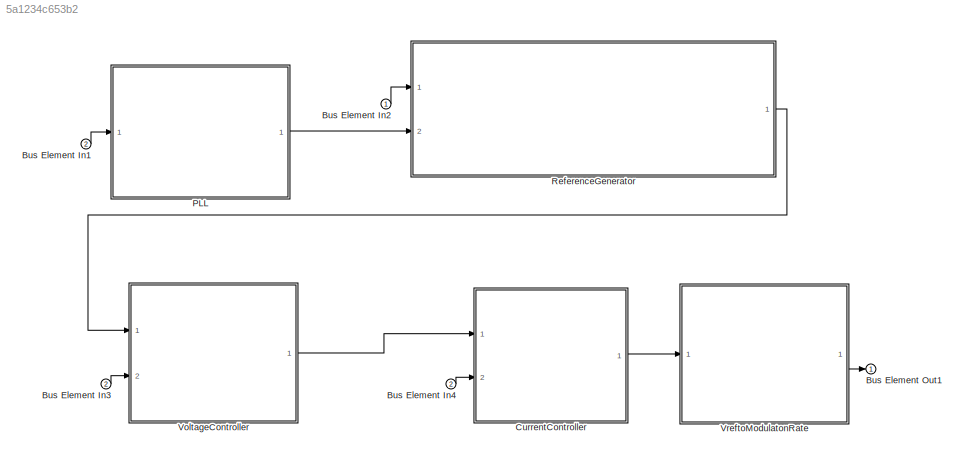
MODEL slx_5a1234c653b2
KIND model
CONFIG AbsTol = auto
CONFIG EnableMultiTasking = off
CONFIG FixedStep = auto
CONFIG MaxStep = auto
CONFIG MinStep = auto
CONFIG RelTol = 1e-3
CONFIG SampleTimeConstraint = Unconstrained
CONFIG Solver = VariableStepAuto
CONFIG SolverName = VariableStepAuto
CONFIG StartTime = 0.0
CONFIG StopTime = 10.0
BLOCK [Inport] Bus Element In1
  Port = 2
BLOCK [Inport] Bus Element In2
BLOCK [Inport] Bus Element In3
  Port = 2
BLOCK [Inport] Bus Element In4
  Port = 2
BLOCK [Outport] Bus Element Out1
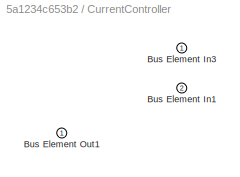
BLOCK [SubSystem] CurrentController
  PortSchema = {"entries":[{"content":{"headerSize":26,"margin":15,"minimumSpacing":25,"sides":[{"content":{"connectorIds":["In1","In2"]},"type":"ConnectorPlacement.EquallySpacedRectSide","uuid":"4a276d0d-1e61-4fe0-a236-83af253ddea3"},{"content":{"connectorIds":["Out1"],"side":"RIGHT"},"type":"ConnectorPlacement.EquallySpacedRectSide","uuid":"2cace6bb-f607-4cf0-88cb-c27cbcb348d0"},{"content":{"connectorIds":[],"...<+296ch>
  Ports = [2, 1]
  RequestExecContextInheritance = off
BLOCK [Inport] CurrentController/Bus Element In1
  Port = 2
BLOCK [Inport] CurrentController/Bus Element In3
BLOCK [Outport] CurrentController/Bus Element Out1
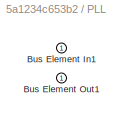
BLOCK [SubSystem] PLL
  PortSchema = {"entries":[{"content":{"headerSize":26,"margin":15,"minimumSpacing":25,"sides":[{"content":{"connectorIds":["In1"]},"type":"ConnectorPlacement.EquallySpacedRectSide","uuid":"4a276d0d-1e61-4fe0-a236-83af253ddea3"},{"content":{"connectorIds":["Out1"],"side":"RIGHT"},"type":"ConnectorPlacement.EquallySpacedRectSide","uuid":"2cace6bb-f607-4cf0-88cb-c27cbcb348d0"},{"content":{"connectorIds":[],"side":...<+290ch>
  Ports = [1, 1]
  RequestExecContextInheritance = off
BLOCK [Inport] PLL/Bus Element In1
BLOCK [Outport] PLL/Bus Element Out1
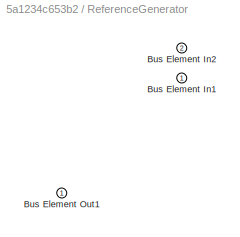
BLOCK [SubSystem] ReferenceGenerator
  PortSchema = {"entries":[{"content":{"headerSize":26,"margin":15,"minimumSpacing":25,"sides":[{"content":{"connectorIds":["In1","In2"]},"type":"ConnectorPlacement.EquallySpacedRectSide","uuid":"4a276d0d-1e61-4fe0-a236-83af253ddea3"},{"content":{"connectorIds":["Out1"],"side":"RIGHT"},"type":"ConnectorPlacement.EquallySpacedRectSide","uuid":"2cace6bb-f607-4cf0-88cb-c27cbcb348d0"},{"content":{"connectorIds":[],"...<+440ch>
  Ports = [2, 1]
  RequestExecContextInheritance = off
BLOCK [Inport] ReferenceGenerator/Bus Element In1
BLOCK [Inport] ReferenceGenerator/Bus Element In2
  Port = 2
BLOCK [Outport] ReferenceGenerator/Bus Element Out1
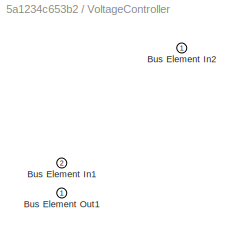
BLOCK [SubSystem] VoltageController
  PortSchema = {"entries":[{"content":{"headerSize":26,"margin":15,"minimumSpacing":25,"sides":[{"content":{"connectorIds":["In1","In2"]},"type":"ConnectorPlacement.EquallySpacedRectSide","uuid":"4a276d0d-1e61-4fe0-a236-83af253ddea3"},{"content":{"connectorIds":["Out1"],"side":"RIGHT"},"type":"ConnectorPlacement.EquallySpacedRectSide","uuid":"2cace6bb-f607-4cf0-88cb-c27cbcb348d0"},{"content":{"connectorIds":[],"...<+296ch>
  Ports = [2, 1]
  RequestExecContextInheritance = off
BLOCK [Inport] VoltageController/Bus Element In1
  Port = 2
BLOCK [Inport] VoltageController/Bus Element In2
BLOCK [Outport] VoltageController/Bus Element Out1
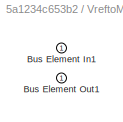
BLOCK [SubSystem] VreftoModulatonRate
  PortSchema = {"entries":[{"content":{"headerSize":26,"margin":15,"minimumSpacing":25,"sides":[{"content":{"connectorIds":["In1"]},"type":"ConnectorPlacement.EquallySpacedRectSide","uuid":"4a276d0d-1e61-4fe0-a236-83af253ddea3"},{"content":{"connectorIds":["Out1"],"side":"RIGHT"},"type":"ConnectorPlacement.EquallySpacedRectSide","uuid":"2cace6bb-f607-4cf0-88cb-c27cbcb348d0"},{"content":{"connectorIds":[],"side":...<+290ch>
  Ports = [1, 1]
  RequestExecContextInheritance = off
BLOCK [Inport] VreftoModulatonRate/Bus Element In1
BLOCK [Outport] VreftoModulatonRate/Bus Element Out1
LINE Bus Element In1:1 -> PLL:1
LINE Bus Element In2:1 -> ReferenceGenerator:1
LINE Bus Element In3:1 -> VoltageController:2
LINE Bus Element In4:1 -> CurrentController:2
LINE CurrentController:1 -> VreftoModulatonRate:1
LINE PLL:1 -> ReferenceGenerator:2
LINE ReferenceGenerator:1 -> VoltageController:1
LINE VoltageController:1 -> CurrentController:1
LINE VreftoModulatonRate:1 -> Bus Element Out1:1
